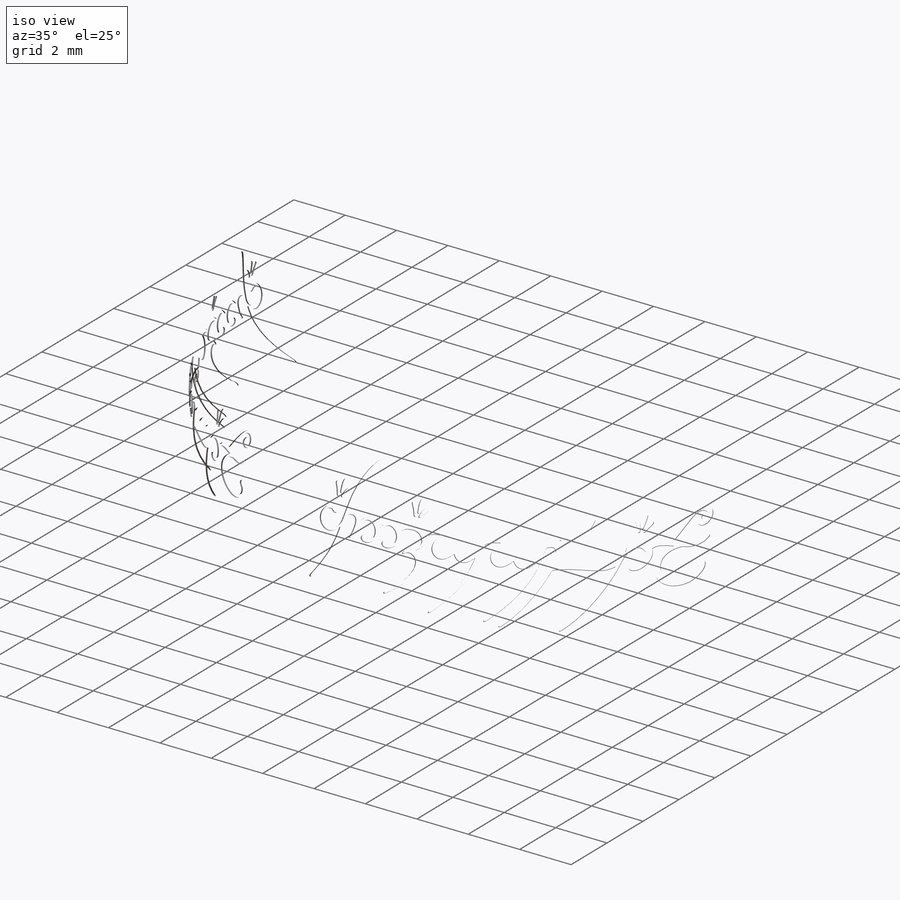
[diagram: iso view]
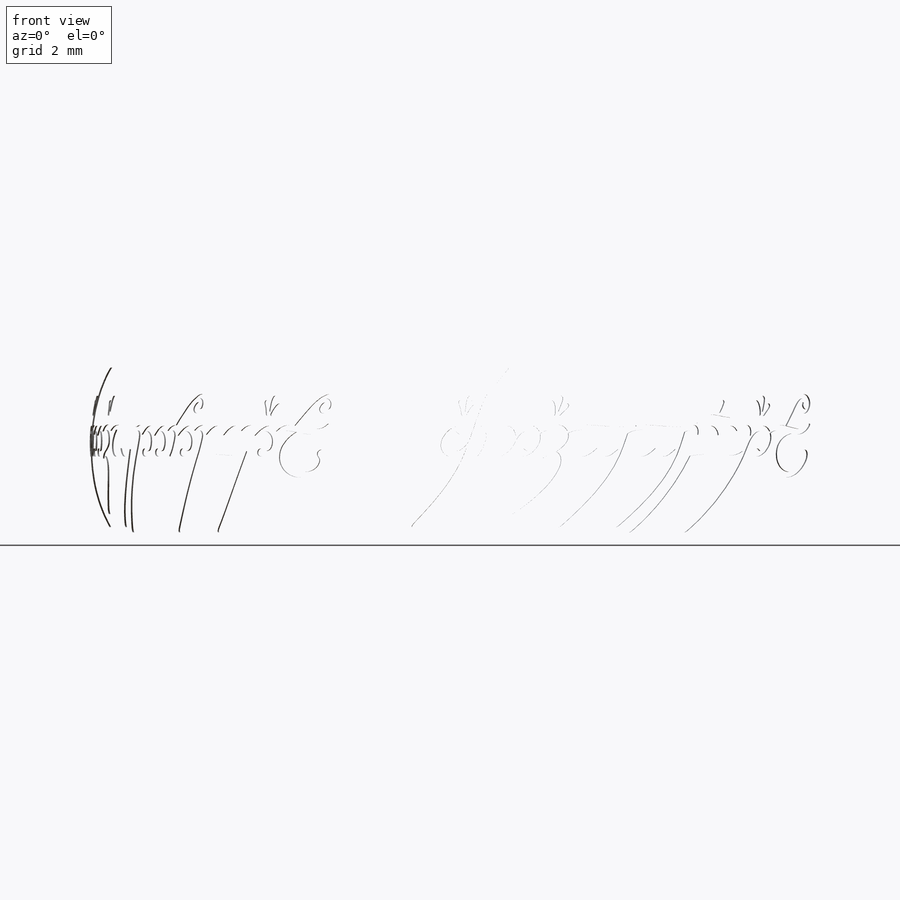
[diagram: front view]
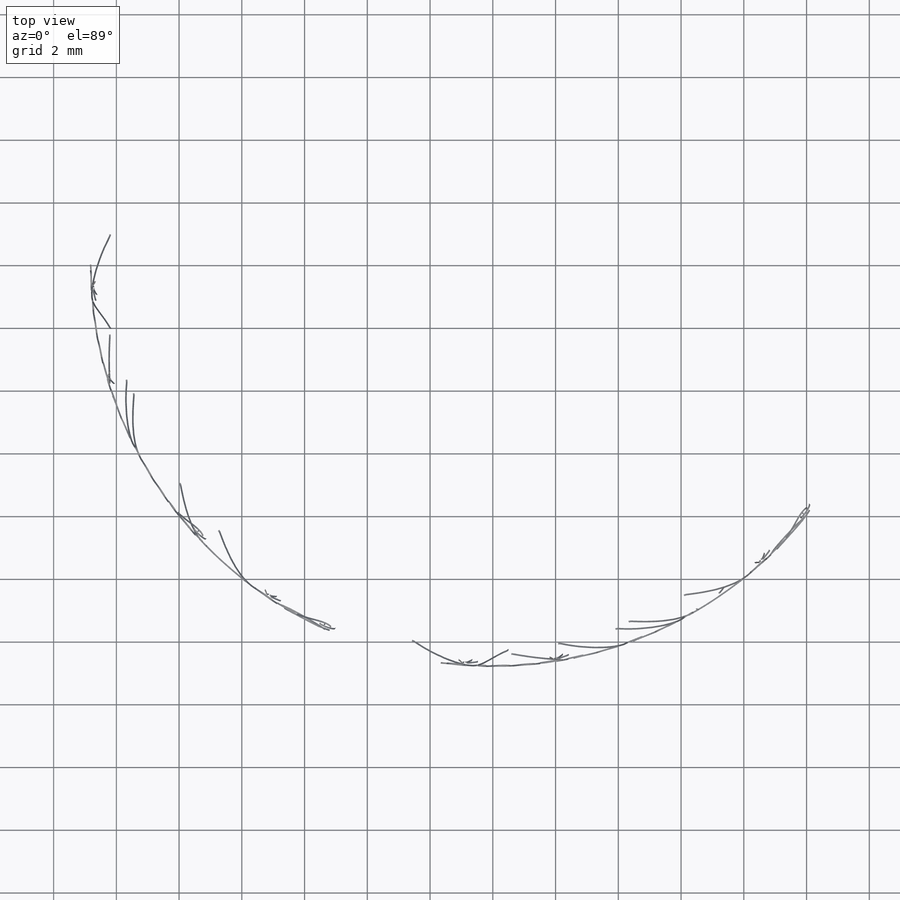
[diagram: top view]
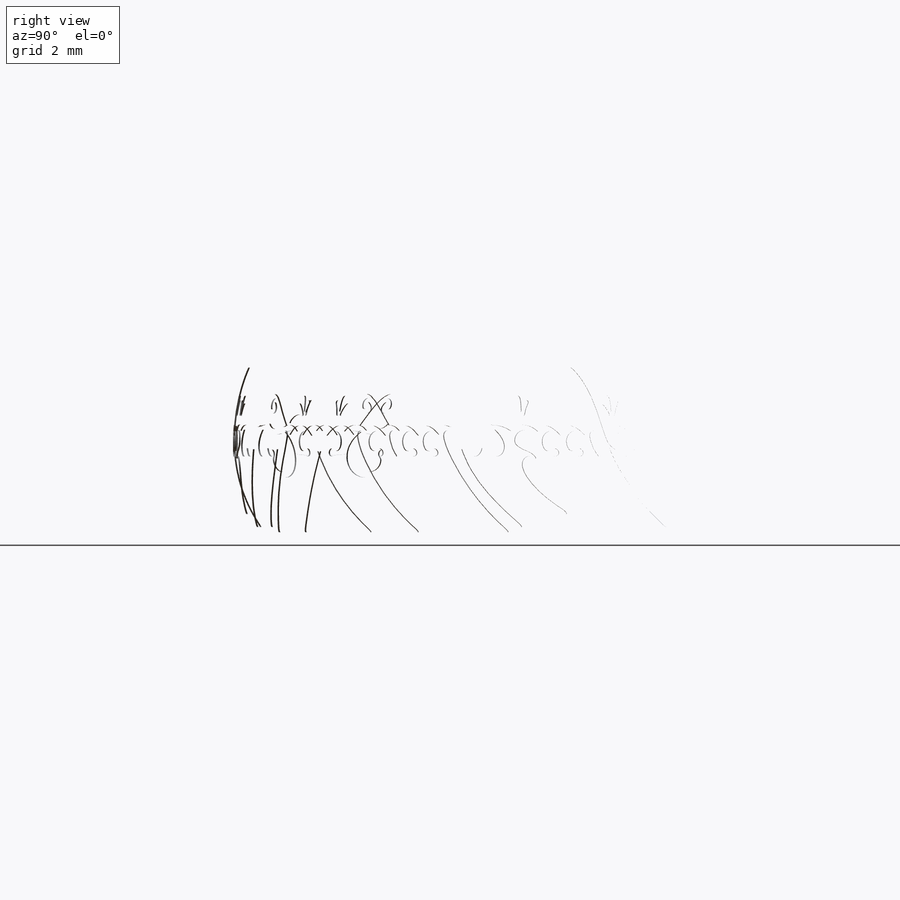
[diagram: right view]
SOLIDWORKS PART (.sldprt)
format: sldprt  version: not decoded by parser v0  size: 18,241,536 bytes
history: native  units: mm
features: sketch x9, plane x2, revolve x2, material x1, cut_revolve x1 (+11 scaffold rows collapsed)
feature tree (26):
  scaffold x11  (default folders/planes/origin — collapsed)
  material  "Material <not specified>"
  sketch  "Sketch1"  dims[c1.D3=40.0mm c1.D4=38.1mm c1.D5=6.35mm c1.D6=1.27mm c1.D7=0.381mm c1.D1=8.0mm c1.D2=10.3mm c2.D4=6.0mm c2.D3=11.43mm]
  plane  "Plane1"
  sketch  "Sketch7"  dims[D1=0.0254mm D2=2.54mm]
  revolve  "Revolve2"  Angle=360deg
  sketch  "Sketch4"
  sketch  "Sketch5"  dims[c1.D1=0.0mm c1.D2=0.0mm c1.D3=0.0mm c1.D4=0.0mm c1.D5=0.0mm c1.D6=0.0mm c1.D7=0.0mm c1.D8=0.0mm c1.D9=0.0mm c1.D10=0.0mm c1.D11=0.0mm c1.D12=0.0mm c1.D13=0.0mm c1.D14=0.0mm c1.D15=0.0mm c1.D16=0.0mm c1.D17=0.0mm c1.D18=0.0mm c1.D19=0.0mm c1.D20=0.0mm c1.D21=0.0mm c1.D22=0.0mm c1.D23=0.0mm c1.D24=0.0mm c1.D25=0.0mm c1.D26=0.0mm c1.D27=0.0mm c1.D28=0.0mm c1.D29=0.0mm c1.D30=0.0mm c1.D31=0.0mm c1.D32=0.0mm c1.D33=0.0mm c1.D34=0.0mm c1.D35=0.0mm c1.D36=0.0mm c2.D1=0.0mm c2.D2=0.0mm c2.D3=0.0mm c2.D4=0.0mm c2.D5=0.0mm c2.D6=0.0mm c2.D7=0.0mm c2.D8=0.0mm c2.D9=0.0mm c2.D10=0.0mm c2.D11=0.0mm c2.D12=0.0mm c2.D13=0.0mm c2.D14=0.0mm c2.D15=0.0mm c2.D16=0.0mm c2.D17=0.0mm c2.D18=0.0mm c2.D19=0.0mm c2.D20=0.0mm c2.D21=0.0mm c2.D22=0.0mm c2.D23=0.0mm c2.D24=0.0mm c2.D25=0.0mm c2.D26=0.0mm c2.D27=0.0mm c2.D28=0.0mm c2.D29=0.0mm c2.D30=0.0mm c2.D31=0.0mm c2.D32=0.0mm c2.D33=0.0mm c2.D34=0.0mm c2.D35=0.0mm c2.D36=0.0mm]
  sketch  "Sketch6"  dims[c1.D1=0.0mm c1.D2=0.0mm c1.D3=0.0mm c1.D4=0.0mm c1.D5=0.0mm c1.D6=0.0mm c1.D7=0.0mm c1.D8=0.0mm c1.D9=0.0mm c1.D10=0.0mm c1.D11=0.0mm c1.D12=0.0mm c1.D13=0.0mm c1.D14=0.0mm c1.D15=0.0mm c1.D16=0.0mm c1.D17=0.0mm c1.D18=0.0mm c1.D19=0.0mm c1.D20=0.0mm c1.D21=0.0mm c1.D22=0.0mm c1.D23=0.0mm c1.D24=0.0mm c1.D25=0.0mm c1.D26=0.0mm c1.D27=0.0mm c1.D28=0.0mm c1.D29=0.0mm c1.D30=0.0mm c1.D31=0.0mm c1.D32=0.0mm c1.D33=0.0mm c1.D34=0.0mm c1.D35=0.0mm c1.D36=0.0mm c2.D1=1.27mm]
  sketch  "Sketch8"
  sketch  "Sketch9"  dims[D1=12.7mm D2=6.35mm D3=7.62mm]
  plane  "Plane2"
  sketch  "Sketch13"  dims[c1.D1=0.0mm c1.D2=0.0mm c1.D3=0.0mm c1.D4=0.0mm c1.D5=0.0mm c1.D6=0.0mm c1.D7=0.0mm c1.D8=0.0mm c1.D9=0.0mm c1.D10=0.0mm c1.D11=0.0mm c1.D12=0.0mm c1.D13=0.0mm c1.D14=0.0mm c1.D15=0.0mm c1.D16=0.0mm c1.D17=0.0mm c1.D18=0.0mm c1.D19=0.0mm c1.D20=0.0mm c1.D21=0.0mm c1.D22=0.0mm c1.D23=0.0mm c1.D24=0.0mm c1.D25=0.0mm c1.D26=0.0mm c1.D27=0.0mm c1.D28=0.0mm c1.D29=0.0mm c1.D30=0.0mm c1.D31=0.0mm c1.D32=0.0mm c1.D33=0.0mm c1.D34=0.0mm c1.D35=0.0mm c1.D36=0.0mm c1.D37=0.0mm c1.D38=0.0mm c2.D1=0.508mm]
  cut_revolve  "Cut-Revolve2"  Angle=360deg
  sketch  "Sketch14"  dims[D1=0.0508mm]
  revolve  "Revolve3"  Angle=360deg
decode coverage: 10 of 12 modeling features carry decoded parameters
note: suppression state not decoded; provenance and decode notes live in map.json
